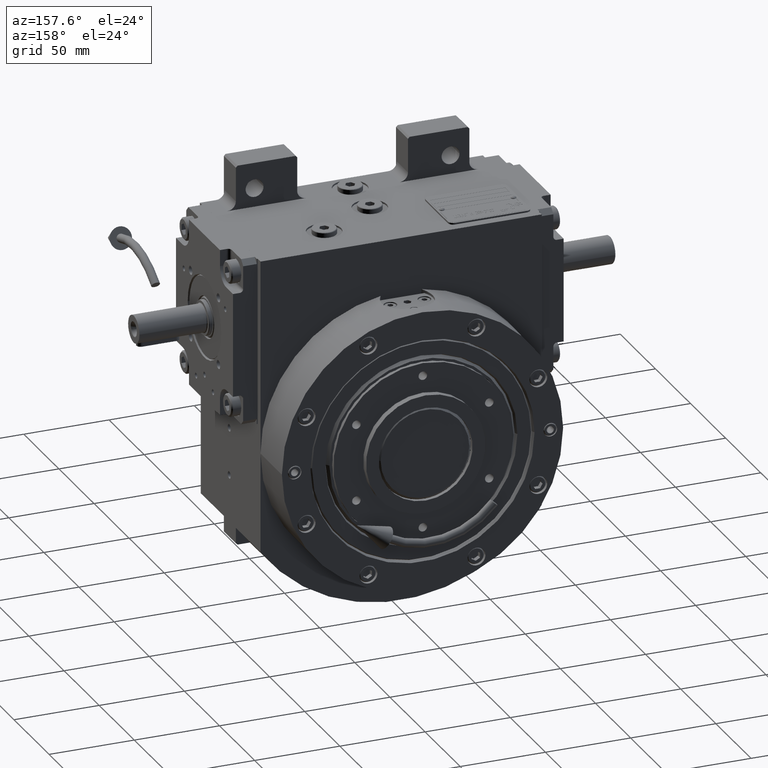
[diagram: clean part render]
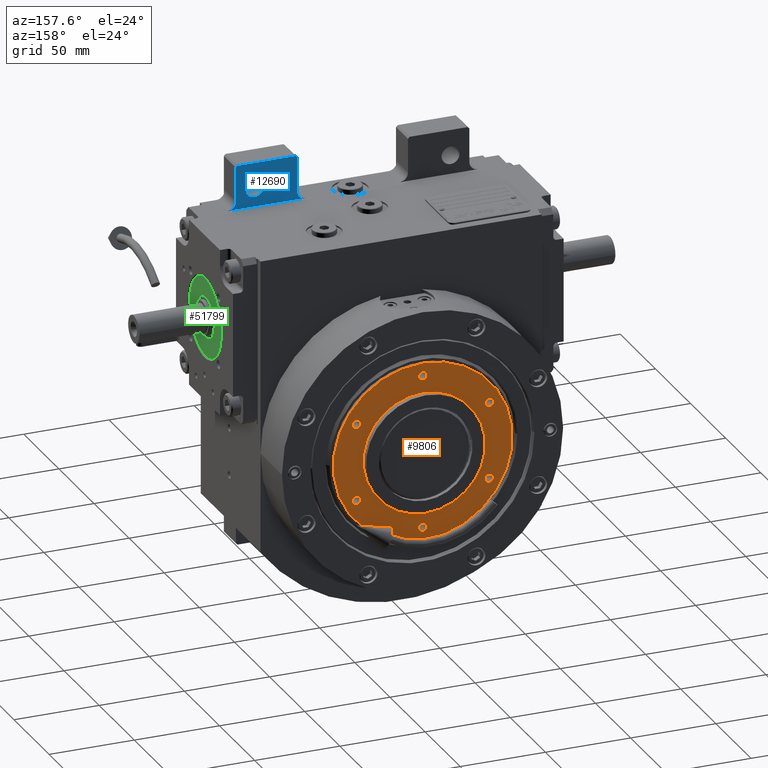
[diagram: same view with three faces highlighted in distinct colors, each labeled with its STEP entity id]
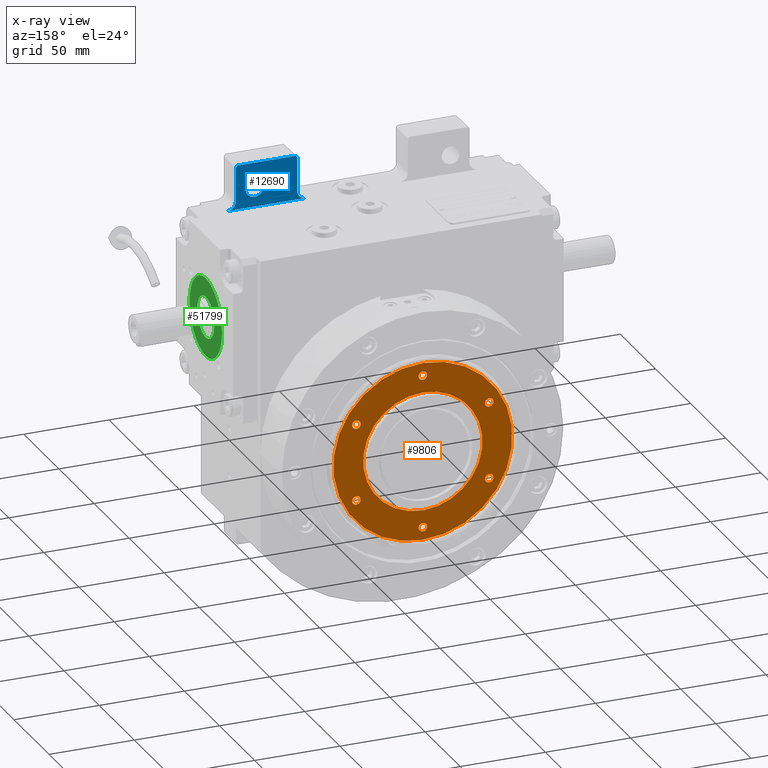
[diagram: x-ray of the same camera — body ghosted, the three highlighted faces saturated]
A machine part, auxiliary view with three faces highlighted in distinct colors.
The next image is the same camera in x-ray (body ghosted, the three faces saturated) — at least one of them is partly hidden behind the body in this view.
Their STEP definitions:

[orange] entity #9806 — the highlighted planar face has unit normal (0, -1, -0).
#448 = CARTESIAN_POINT ( 'NONE',  ( 45.00000000000000000, 89.00000000000000000, 7.494178599599612151E-27 ) ) ;
#850 = DIRECTION ( 'NONE',  ( -1.000000000000000000, 0.000000000000000000, 0.000000000000000000 ) ) ;
#1169 = CARTESIAN_POINT ( 'NONE',  ( 22.50000000000000000, 89.00000000000000000, -38.97114317029975439 ) ) ;
#1374 = DIRECTION ( 'NONE',  ( 1.000000000000000000, 0.000000000000000000, 1.224646799147351728E-16 ) ) ;
#1530 = CIRCLE ( 'NONE', #2584, 35.00000000000000000 ) ;
#1549 = DIRECTION ( 'NONE',  ( 0.000000000000000000, 1.000000000000000000, -1.685188701288034302E-33 ) ) ;
#1693 = CARTESIAN_POINT ( 'NONE',  ( 2.486899575160352859E-14, 89.00000000000000000, 7.494178599599612151E-27 ) ) ;
#1794 = FACE_BOUND ( 'NONE', #33857, .T. ) ;
#2186 = VERTEX_POINT ( 'NONE', #7783 ) ;
#2262 = ORIENTED_EDGE ( 'NONE', *, *, #23890, .F. ) ;
#2481 = EDGE_CURVE ( 'NONE', #34522, #28429, #20220, .T. ) ;
#2584 = AXIS2_PLACEMENT_3D ( 'NONE', #1693, #60845, #1374 ) ;
#2705 = CARTESIAN_POINT ( 'NONE',  ( -45.00000000000000000, 89.00000000000000000, 4.440892098500137068E-16 ) ) ;
#3020 = DIRECTION ( 'NONE',  ( 1.000000000000000000, 0.000000000000000000, -1.776356839400242675E-16 ) ) ;
#3034 = EDGE_CURVE ( 'NONE', #46378, #5541, #13054, .T. ) ;
#3482 = EDGE_LOOP ( 'NONE', ( #20388, #48358 ) ) ;
#3843 = AXIS2_PLACEMENT_3D ( 'NONE', #49828, #55338, #6183 ) ;
#4149 = EDGE_LOOP ( 'NONE', ( #36306, #35756 ) ) ;
#4400 = AXIS2_PLACEMENT_3D ( 'NONE', #14996, #5958, #25033 ) ;
#4436 = ORIENTED_EDGE ( 'NONE', *, *, #37400, .F. ) ;
#4528 = CARTESIAN_POINT ( 'NONE',  ( -22.50000000000000000, 89.00000000000000000, -38.97114317030001729 ) ) ;
#4697 = ORIENTED_EDGE ( 'NONE', *, *, #3034, .F. ) ;
#4938 = EDGE_CURVE ( 'NONE', #14211, #62843, #31004, .T. ) ;
#5343 = DIRECTION ( 'NONE',  ( 0.000000000000000000, 1.000000000000000000, -1.685188701288034302E-33 ) ) ;
#5541 = VERTEX_POINT ( 'NONE', #8491 ) ;
#5958 = DIRECTION ( 'NONE',  ( 0.000000000000000000, 1.000000000000000000, -1.685188701288034302E-33 ) ) ;
#6116 = DIRECTION ( 'NONE',  ( 1.000000000000000000, -2.643388153869420311E-16, 0.000000000000000000 ) ) ;
#6183 = DIRECTION ( 'NONE',  ( -1.000000000000000000, 0.000000000000000000, 0.000000000000000000 ) ) ;
#6312 = DIRECTION ( 'NONE',  ( 0.000000000000000000, 1.000000000000000000, -1.685188701288034302E-33 ) ) ;
#7454 = AXIS2_PLACEMENT_3D ( 'NONE', #1169, #6312, #850 ) ;
#7697 = EDGE_LOOP ( 'NONE', ( #13325, #4697 ) ) ;
#7783 = CARTESIAN_POINT ( 'NONE',  ( -25.00000000000000000, 89.00000000000000000, -38.97114317030001729 ) ) ;
#8388 = VERTEX_POINT ( 'NONE', #13407 ) ;
#8474 = EDGE_LOOP ( 'NONE', ( #53972, #28627 ) ) ;
#8491 = CARTESIAN_POINT ( 'NONE',  ( -25.00000000000000000, 89.00000000000000000, 38.97114317029949149 ) ) ;
#9200 = DIRECTION ( 'NONE',  ( -2.706829469562285187E-16, -1.000000000000000000, -6.062552332133027738E-33 ) ) ;
#9224 = CARTESIAN_POINT ( 'NONE',  ( 22.50000000000000000, 89.00000000000000000, 38.97114317029975439 ) ) ;
#9262 = VERTEX_POINT ( 'NONE', #54255 ) ;
#9717 = EDGE_CURVE ( 'NONE', #62843, #14211, #15687, .T. ) ;
#9806 = ADVANCED_FACE ( 'NONE', ( #1794, #55454, #59649, #39926, #20830, #15344, #45096, #15989 ), #49947, .F. ) ;
#9872 = CARTESIAN_POINT ( 'NONE',  ( 2.131628207280341894E-14, 89.00000000000000000, 7.105427357608502348E-15 ) ) ;
#9952 = CARTESIAN_POINT ( 'NONE',  ( 20.00000000000000000, 89.00000000000000000, 38.97114317029975439 ) ) ;
#9974 = DIRECTION ( 'NONE',  ( 0.000000000000000000, 1.000000000000000000, -1.685188701288034302E-33 ) ) ;
#10163 = DIRECTION ( 'NONE',  ( -1.000000000000000000, 1.836909530733564901E-16, 0.000000000000000000 ) ) ;
#10373 = ORIENTED_EDGE ( 'NONE', *, *, #28654, .F. ) ;
#10685 = EDGE_CURVE ( 'NONE', #9262, #32246, #27184, .T. ) ;
#12245 = CIRCLE ( 'NONE', #37064, 35.00000000000000000 ) ;
#13054 = CIRCLE ( 'NONE', #21321, 2.499999999999998668 ) ;
#13325 = ORIENTED_EDGE ( 'NONE', *, *, #35901, .F. ) ;
#13407 = CARTESIAN_POINT ( 'NONE',  ( -42.50000000000000000, 89.00000000000000000, 1.836909530733676328E-15 ) ) ;
#14211 = VERTEX_POINT ( 'NONE', #22791 ) ;
#14683 = AXIS2_PLACEMENT_3D ( 'NONE', #29614, #5343, #50919 ) ;
#14996 = CARTESIAN_POINT ( 'NONE',  ( 22.50000000000000000, 89.00000000000000000, -38.97114317029975439 ) ) ;
#15316 = CARTESIAN_POINT ( 'NONE',  ( 25.00000000000000000, 89.00000000000000000, -38.97114317029975439 ) ) ;
#15344 = FACE_BOUND ( 'NONE', #8474, .T. ) ;
#15465 = DIRECTION ( 'NONE',  ( 2.706829469562285187E-16, 1.000000000000000000, 6.062552332133027738E-33 ) ) ;
#15687 = CIRCLE ( 'NONE', #21886, 2.499999999999998668 ) ;
#15932 = ORIENTED_EDGE ( 'NONE', *, *, #17859, .F. ) ;
#15989 = FACE_BOUND ( 'NONE', #35622, .T. ) ;
#16160 = ORIENTED_EDGE ( 'NONE', *, *, #2481, .T. ) ;
#16527 = VERTEX_POINT ( 'NONE', #15316 ) ;
#17322 = DIRECTION ( 'NONE',  ( 1.000000000000000000, 0.000000000000000000, 0.000000000000000000 ) ) ;
#17477 = EDGE_CURVE ( 'NONE', #60428, #2186, #59226, .T. ) ;
#17859 = EDGE_CURVE ( 'NONE', #34522, #28429, #22122, .T. ) ;
#18569 = EDGE_CURVE ( 'NONE', #62181, #56754, #1530, .T. ) ;
#18946 = VERTEX_POINT ( 'NONE', #40709 ) ;
#20220 = CIRCLE ( 'NONE', #42933, 52.50000000000000000 ) ;
#20388 = ORIENTED_EDGE ( 'NONE', *, *, #53220, .F. ) ;
#20825 = AXIS2_PLACEMENT_3D ( 'NONE', #50271, #25064, #10163 ) ;
#20830 = FACE_BOUND ( 'NONE', #4149, .T. ) ;
#21321 = AXIS2_PLACEMENT_3D ( 'NONE', #50969, #1549, #31582 ) ;
#21886 = AXIS2_PLACEMENT_3D ( 'NONE', #9224, #53542, #53225 ) ;
#22106 = EDGE_CURVE ( 'NONE', #50379, #16527, #27093, .T. ) ;
#22122 = CIRCLE ( 'NONE', #57205, 52.50000000000000000 ) ;
#22791 = CARTESIAN_POINT ( 'NONE',  ( 25.00000000000000000, 89.00000000000000000, 38.97114317029975439 ) ) ;
#23890 = EDGE_CURVE ( 'NONE', #8388, #18946, #55150, .T. ) ;
#24768 = DIRECTION ( 'NONE',  ( 0.000000000000000000, 1.000000000000000000, -1.685188701288034302E-33 ) ) ;
#24948 = CARTESIAN_POINT ( 'NONE',  ( -35.00000000000000000, 89.00000000000000000, -5.715018396020886806E-15 ) ) ;
#25033 = DIRECTION ( 'NONE',  ( 1.000000000000000000, 0.000000000000000000, 0.000000000000000000 ) ) ;
#25064 = DIRECTION ( 'NONE',  ( -1.836909530733564901E-16, -1.000000000000000000, -5.954631203350559886E-33 ) ) ;
#25546 = CARTESIAN_POINT ( 'NONE',  ( 20.00000000000000000, 89.00000000000000000, -38.97114317029975439 ) ) ;
#26302 = DIRECTION ( 'NONE',  ( 0.000000000000000000, 1.000000000000000000, -1.685188701288034302E-33 ) ) ;
#27093 = CIRCLE ( 'NONE', #7454, 2.499999999999998668 ) ;
#27184 = CIRCLE ( 'NONE', #35429, 2.500000000000002220 ) ;
#27265 = DIRECTION ( 'NONE',  ( 0.000000000000000000, 1.000000000000000000, -1.685188701288034302E-33 ) ) ;
#28429 = VERTEX_POINT ( 'NONE', #34108 ) ;
#28548 = ORIENTED_EDGE ( 'NONE', *, *, #18569, .T. ) ;
#28627 = ORIENTED_EDGE ( 'NONE', *, *, #10685, .F. ) ;
#28654 = EDGE_CURVE ( 'NONE', #16527, #50379, #62195, .T. ) ;
#29368 = CARTESIAN_POINT ( 'NONE',  ( 42.50000000000000000, 89.00000000000000000, -2.680204416053838929E-16 ) ) ;
#29614 = CARTESIAN_POINT ( 'NONE',  ( -22.50000000000000000, 89.00000000000000000, -38.97114317030001729 ) ) ;
#29726 = DIRECTION ( 'NONE',  ( 1.000000000000000000, 0.000000000000000000, 0.000000000000000000 ) ) ;
#31004 = CIRCLE ( 'NONE', #47502, 2.499999999999998668 ) ;
#31582 = DIRECTION ( 'NONE',  ( 1.000000000000000000, 0.000000000000000000, 0.000000000000000000 ) ) ;
#32246 = VERTEX_POINT ( 'NONE', #29368 ) ;
#33146 = DIRECTION ( 'NONE',  ( 1.000000000000000000, -2.643388153869420311E-16, 0.000000000000000000 ) ) ;
#33329 = ORIENTED_EDGE ( 'NONE', *, *, #62463, .F. ) ;
#33857 = EDGE_LOOP ( 'NONE', ( #58658, #10373 ) ) ;
#34108 = CARTESIAN_POINT ( 'NONE',  ( -52.50000000000000000, 89.00000000000000000, -4.286263797015911623E-15 ) ) ;
#34159 = CARTESIAN_POINT ( 'NONE',  ( 35.00000000000000000, 89.00000000000000000, 4.286263797015911623E-15 ) ) ;
#34522 = VERTEX_POINT ( 'NONE', #60577 ) ;
#35429 = AXIS2_PLACEMENT_3D ( 'NONE', #60046, #50363, #55848 ) ;
#35622 = EDGE_LOOP ( 'NONE', ( #33329, #28548 ) ) ;
#35756 = ORIENTED_EDGE ( 'NONE', *, *, #4938, .F. ) ;
#35901 = EDGE_CURVE ( 'NONE', #5541, #46378, #44943, .T. ) ;
#36306 = ORIENTED_EDGE ( 'NONE', *, *, #9717, .F. ) ;
#36308 = DIRECTION ( 'NONE',  ( 0.000000000000000000, 1.000000000000000000, -1.685188701288034302E-33 ) ) ;
#36876 = CIRCLE ( 'NONE', #3843, 2.500000000000002220 ) ;
#37064 = AXIS2_PLACEMENT_3D ( 'NONE', #9872, #24768, #49327 ) ;
#37400 = EDGE_CURVE ( 'NONE', #18946, #8388, #36876, .T. ) ;
#39872 = DIRECTION ( 'NONE',  ( -1.000000000000000000, 0.000000000000000000, 0.000000000000000000 ) ) ;
#39926 = FACE_BOUND ( 'NONE', #7697, .T. ) ;
#40709 = CARTESIAN_POINT ( 'NONE',  ( -47.50000000000000000, 89.00000000000000000, 1.568889089120798256E-15 ) ) ;
#41165 = CARTESIAN_POINT ( 'NONE',  ( -22.50000000000000000, 89.00000000000000000, 38.97114317029949149 ) ) ;
#42581 = CIRCLE ( 'NONE', #14683, 2.499999999999998668 ) ;
#42933 = AXIS2_PLACEMENT_3D ( 'NONE', #60093, #15465, #6116 ) ;
#43993 = EDGE_CURVE ( 'NONE', #32246, #9262, #53893, .T. ) ;
#44943 = CIRCLE ( 'NONE', #57375, 2.499999999999998668 ) ;
#45096 = FACE_OUTER_BOUND ( 'NONE', #62448, .T. ) ;
#46378 = VERTEX_POINT ( 'NONE', #56117 ) ;
#47502 = AXIS2_PLACEMENT_3D ( 'NONE', #57723, #61969, #17322 ) ;
#48358 = ORIENTED_EDGE ( 'NONE', *, *, #17477, .F. ) ;
#49327 = DIRECTION ( 'NONE',  ( 1.000000000000000000, 0.000000000000000000, -8.054753030243562461E-17 ) ) ;
#49828 = CARTESIAN_POINT ( 'NONE',  ( -45.00000000000000000, 89.00000000000000000, -1.972152263052529514E-28 ) ) ;
#49900 = AXIS2_PLACEMENT_3D ( 'NONE', #4528, #9974, #29726 ) ;
#49947 = PLANE ( 'NONE',  #20825 ) ;
#50271 = CARTESIAN_POINT ( 'NONE',  ( 1.635767019581042183E-14, 89.00000000000000000, 7.494178599599612151E-27 ) ) ;
#50363 = DIRECTION ( 'NONE',  ( 0.000000000000000000, 1.000000000000000000, -1.685188701288034302E-33 ) ) ;
#50379 = VERTEX_POINT ( 'NONE', #25546 ) ;
#50919 = DIRECTION ( 'NONE',  ( -1.000000000000000000, 0.000000000000000000, 0.000000000000000000 ) ) ;
#50969 = CARTESIAN_POINT ( 'NONE',  ( -22.50000000000000000, 89.00000000000000000, 38.97114317029949149 ) ) ;
#53220 = EDGE_CURVE ( 'NONE', #2186, #60428, #42581, .T. ) ;
#53225 = DIRECTION ( 'NONE',  ( -1.000000000000000000, 0.000000000000000000, 0.000000000000000000 ) ) ;
#53519 = CARTESIAN_POINT ( 'NONE',  ( 1.776356839400252042E-14, 89.00000000000000000, 7.494178599599612151E-27 ) ) ;
#53542 = DIRECTION ( 'NONE',  ( 0.000000000000000000, 1.000000000000000000, -1.685188701288034302E-33 ) ) ;
#53893 = CIRCLE ( 'NONE', #61101, 2.500000000000002220 ) ;
#53972 = ORIENTED_EDGE ( 'NONE', *, *, #43993, .F. ) ;
#54255 = CARTESIAN_POINT ( 'NONE',  ( 47.50000000000000000, 89.00000000000000000, 7.494178599599612151E-27 ) ) ;
#55150 = CIRCLE ( 'NONE', #58232, 2.500000000000002220 ) ;
#55338 = DIRECTION ( 'NONE',  ( 0.000000000000000000, 1.000000000000000000, -1.685188701288034302E-33 ) ) ;
#55454 = FACE_BOUND ( 'NONE', #3482, .T. ) ;
#55848 = DIRECTION ( 'NONE',  ( 1.000000000000000000, 0.000000000000000000, 0.000000000000000000 ) ) ;
#56030 = DIRECTION ( 'NONE',  ( -1.000000000000000000, 0.000000000000000000, 0.000000000000000000 ) ) ;
#56117 = CARTESIAN_POINT ( 'NONE',  ( -20.00000000000000000, 89.00000000000000000, 38.97114317029949149 ) ) ;
#56754 = VERTEX_POINT ( 'NONE', #24948 ) ;
#57205 = AXIS2_PLACEMENT_3D ( 'NONE', #53519, #9200, #33146 ) ;
#57375 = AXIS2_PLACEMENT_3D ( 'NONE', #41165, #36308, #56030 ) ;
#57723 = CARTESIAN_POINT ( 'NONE',  ( 22.50000000000000000, 89.00000000000000000, 38.97114317029975439 ) ) ;
#57891 = EDGE_LOOP ( 'NONE', ( #4436, #2262 ) ) ;
#58232 = AXIS2_PLACEMENT_3D ( 'NONE', #2705, #27265, #3020 ) ;
#58658 = ORIENTED_EDGE ( 'NONE', *, *, #22106, .F. ) ;
#59226 = CIRCLE ( 'NONE', #49900, 2.499999999999998668 ) ;
#59649 = FACE_BOUND ( 'NONE', #57891, .T. ) ;
#60046 = CARTESIAN_POINT ( 'NONE',  ( 45.00000000000000000, 89.00000000000000000, 7.494178599599612151E-27 ) ) ;
#60093 = CARTESIAN_POINT ( 'NONE',  ( 1.776356839400252042E-14, 89.00000000000000000, 7.494178599599612151E-27 ) ) ;
#60428 = VERTEX_POINT ( 'NONE', #63006 ) ;
#60577 = CARTESIAN_POINT ( 'NONE',  ( 52.50000000000000000, 89.00000000000000000, 2.143131898515351383E-15 ) ) ;
#60845 = DIRECTION ( 'NONE',  ( 0.000000000000000000, -1.000000000000000000, 1.685188701288034302E-33 ) ) ;
#61101 = AXIS2_PLACEMENT_3D ( 'NONE', #448, #26302, #39872 ) ;
#61969 = DIRECTION ( 'NONE',  ( 0.000000000000000000, 1.000000000000000000, -1.685188701288034302E-33 ) ) ;
#62181 = VERTEX_POINT ( 'NONE', #34159 ) ;
#62195 = CIRCLE ( 'NONE', #4400, 2.499999999999998668 ) ;
#62448 = EDGE_LOOP ( 'NONE', ( #15932, #16160 ) ) ;
#62463 = EDGE_CURVE ( 'NONE', #62181, #56754, #12245, .T. ) ;
#62843 = VERTEX_POINT ( 'NONE', #9952 ) ;
#63006 = CARTESIAN_POINT ( 'NONE',  ( -20.00000000000000000, 89.00000000000000000, -38.97114317030001729 ) ) ;

[blue] entity #12690 — the highlighted planar face has unit normal (0, -1, 0).
#188 = LINE ( 'NONE', #10480, #63233 ) ;
#1052 = VERTEX_POINT ( 'NONE', #40126 ) ;
#1949 = VERTEX_POINT ( 'NONE', #39824 ) ;
#4744 = CARTESIAN_POINT ( 'NONE',  ( 32.49999999999934630, -24.50000000000000000, 119.0000000000000000 ) ) ;
#5202 = VECTOR ( 'NONE', #42002, 1000.000000000000114 ) ;
#5757 = VECTOR ( 'NONE', #61459, 1000.000000000000000 ) ;
#5833 = DIRECTION ( 'NONE',  ( 0.000000000000000000, -1.000000000000000000, 0.000000000000000000 ) ) ;
#6667 = VERTEX_POINT ( 'NONE', #16603 ) ;
#7391 = CARTESIAN_POINT ( 'NONE',  ( 67.50000000000000000, -24.50000000000000000, 140.0000000000000000 ) ) ;
#7940 = CIRCLE ( 'NONE', #37891, 5.249999999999997335 ) ;
#7994 = DIRECTION ( 'NONE',  ( -1.000000000000000000, 0.000000000000000000, 5.286776307738843186E-15 ) ) ;
#8520 = AXIS2_PLACEMENT_3D ( 'NONE', #24375, #57985, #43118 ) ;
#8723 = VECTOR ( 'NONE', #59554, 1000.000000000000000 ) ;
#9014 = CARTESIAN_POINT ( 'NONE',  ( 57.50000000000000000, -24.50000000000000000, 125.0000000000000000 ) ) ;
#9879 = AXIS2_PLACEMENT_3D ( 'NONE', #9014, #43936, #48140 ) ;
#10480 = CARTESIAN_POINT ( 'NONE',  ( 27.49999999999934630, -24.50000000000000000, 114.0000000000000000 ) ) ;
#12104 = DIRECTION ( 'NONE',  ( 0.000000000000000000, -1.000000000000000000, 0.000000000000000000 ) ) ;
#12690 = ADVANCED_FACE ( 'NONE', ( #42193, #51252 ), #21808, .F. ) ;
#16135 = LINE ( 'NONE', #46196, #27267 ) ;
#16603 = CARTESIAN_POINT ( 'NONE',  ( 68.50000000000000000, -24.50000000000000000, 139.0000000000000000 ) ) ;
#18312 = VECTOR ( 'NONE', #43742, 1000.000000000000000 ) ;
#18391 = EDGE_CURVE ( 'NONE', #37622, #6667, #40455, .T. ) ;
#20222 = ORIENTED_EDGE ( 'NONE', *, *, #59512, .F. ) ;
#20677 = EDGE_CURVE ( 'NONE', #58890, #1949, #188, .T. ) ;
#20932 = ORIENTED_EDGE ( 'NONE', *, *, #30409, .T. ) ;
#21053 = EDGE_CURVE ( 'NONE', #37622, #1949, #36412, .T. ) ;
#21808 = PLANE ( 'NONE',  #61434 ) ;
#22549 = CARTESIAN_POINT ( 'NONE',  ( 32.49999999999934630, -24.50000000000000000, 139.0000000000000000 ) ) ;
#23390 = VERTEX_POINT ( 'NONE', #24226 ) ;
#24226 = CARTESIAN_POINT ( 'NONE',  ( 52.25000000000000000, -24.50000000000000000, 125.0000000000000000 ) ) ;
#24375 = CARTESIAN_POINT ( 'NONE',  ( 73.50000000000000000, -24.50000000000000000, 119.0000000000000000 ) ) ;
#24561 = CIRCLE ( 'NONE', #41079, 5.000000000000004441 ) ;
#25263 = VERTEX_POINT ( 'NONE', #4744 ) ;
#25560 = DIRECTION ( 'NONE',  ( -1.387778780781444492E-15, 0.000000000000000000, -1.000000000000000000 ) ) ;
#25854 = DIRECTION ( 'NONE',  ( 0.7071067811865474617, 0.000000000000000000, 0.7071067811865474617 ) ) ;
#26037 = EDGE_CURVE ( 'NONE', #1052, #29754, #37175, .T. ) ;
#26143 = EDGE_CURVE ( 'NONE', #34401, #23390, #29535, .T. ) ;
#27267 = VECTOR ( 'NONE', #25854, 1000.000000000000114 ) ;
#27479 = LINE ( 'NONE', #7391, #5202 ) ;
#27744 = DIRECTION ( 'NONE',  ( 0.000000000000000000, 1.000000000000000000, 0.000000000000000000 ) ) ;
#29535 = CIRCLE ( 'NONE', #9879, 5.249999999999997335 ) ;
#29754 = VERTEX_POINT ( 'NONE', #58291 ) ;
#30401 = CARTESIAN_POINT ( 'NONE',  ( 27.49999999999934630, -24.50000000000000000, 119.0000000000000000 ) ) ;
#30409 = EDGE_CURVE ( 'NONE', #45098, #29754, #16135, .T. ) ;
#33744 = CARTESIAN_POINT ( 'NONE',  ( 32.49999999999934630, -24.50000000000000000, 139.0000000000000000 ) ) ;
#34401 = VERTEX_POINT ( 'NONE', #46002 ) ;
#35083 = ORIENTED_EDGE ( 'NONE', *, *, #26037, .F. ) ;
#36076 = CARTESIAN_POINT ( 'NONE',  ( 0.000000000000000000, -24.50000000000000000, 0.000000000000000000 ) ) ;
#36412 = CIRCLE ( 'NONE', #8520, 5.000000000000004441 ) ;
#36719 = CARTESIAN_POINT ( 'NONE',  ( 27.49999999999934630, -24.50000000000000000, 114.0000000000000000 ) ) ;
#37158 = ORIENTED_EDGE ( 'NONE', *, *, #18391, .F. ) ;
#37175 = LINE ( 'NONE', #41711, #5757 ) ;
#37433 = ORIENTED_EDGE ( 'NONE', *, *, #45272, .F. ) ;
#37622 = VERTEX_POINT ( 'NONE', #60834 ) ;
#37891 = AXIS2_PLACEMENT_3D ( 'NONE', #52305, #27744, #7994 ) ;
#39824 = CARTESIAN_POINT ( 'NONE',  ( 73.50000000000000000, -24.50000000000000000, 114.0000000000000000 ) ) ;
#39831 = CARTESIAN_POINT ( 'NONE',  ( 68.50000000000000000, -24.50000000000000000, 119.0000000000000000 ) ) ;
#40126 = CARTESIAN_POINT ( 'NONE',  ( 67.50000000000000000, -24.50000000000000000, 140.0000000000000000 ) ) ;
#40455 = LINE ( 'NONE', #39831, #8723 ) ;
#41079 = AXIS2_PLACEMENT_3D ( 'NONE', #30401, #5833, #25560 ) ;
#41711 = CARTESIAN_POINT ( 'NONE',  ( 67.50000000000000000, -24.50000000000000000, 140.0000000000000000 ) ) ;
#42002 = DIRECTION ( 'NONE',  ( 0.7071067811865474617, 0.000000000000000000, -0.7071067811865474617 ) ) ;
#42193 = FACE_BOUND ( 'NONE', #52433, .T. ) ;
#43118 = DIRECTION ( 'NONE',  ( -1.000000000000000000, 0.000000000000000000, 0.000000000000000000 ) ) ;
#43742 = DIRECTION ( 'NONE',  ( 0.000000000000000000, 0.000000000000000000, -1.000000000000000000 ) ) ;
#43936 = DIRECTION ( 'NONE',  ( 0.000000000000000000, 1.000000000000000000, 0.000000000000000000 ) ) ;
#44687 = LINE ( 'NONE', #33744, #18312 ) ;
#45098 = VERTEX_POINT ( 'NONE', #22549 ) ;
#45272 = EDGE_CURVE ( 'NONE', #23390, #34401, #7940, .T. ) ;
#46002 = CARTESIAN_POINT ( 'NONE',  ( 62.75000000000000000, -24.50000000000000000, 125.0000000000000000 ) ) ;
#46196 = CARTESIAN_POINT ( 'NONE',  ( 32.49999999999934630, -24.50000000000000000, 139.0000000000000000 ) ) ;
#47994 = ORIENTED_EDGE ( 'NONE', *, *, #21053, .T. ) ;
#48140 = DIRECTION ( 'NONE',  ( 1.000000000000000000, 0.000000000000000000, 5.286776307738843186E-15 ) ) ;
#50200 = ORIENTED_EDGE ( 'NONE', *, *, #26143, .F. ) ;
#50542 = EDGE_CURVE ( 'NONE', #1052, #6667, #27479, .T. ) ;
#51252 = FACE_OUTER_BOUND ( 'NONE', #59930, .T. ) ;
#52305 = CARTESIAN_POINT ( 'NONE',  ( 57.50000000000000000, -24.50000000000000000, 125.0000000000000000 ) ) ;
#52433 = EDGE_LOOP ( 'NONE', ( #50200, #37433 ) ) ;
#54189 = DIRECTION ( 'NONE',  ( 1.000000000000000000, 0.000000000000000000, 0.000000000000000000 ) ) ;
#55477 = DIRECTION ( 'NONE',  ( -1.000000000000000000, 0.000000000000000000, 0.000000000000000000 ) ) ;
#55891 = ORIENTED_EDGE ( 'NONE', *, *, #20677, .F. ) ;
#57309 = ORIENTED_EDGE ( 'NONE', *, *, #60136, .T. ) ;
#57829 = ORIENTED_EDGE ( 'NONE', *, *, #50542, .T. ) ;
#57985 = DIRECTION ( 'NONE',  ( 0.000000000000000000, -1.000000000000000000, 0.000000000000000000 ) ) ;
#58291 = CARTESIAN_POINT ( 'NONE',  ( 33.49999999999934630, -24.50000000000000000, 140.0000000000000000 ) ) ;
#58890 = VERTEX_POINT ( 'NONE', #36719 ) ;
#59512 = EDGE_CURVE ( 'NONE', #45098, #25263, #44687, .T. ) ;
#59554 = DIRECTION ( 'NONE',  ( 0.000000000000000000, 0.000000000000000000, 1.000000000000000000 ) ) ;
#59930 = EDGE_LOOP ( 'NONE', ( #37158, #47994, #55891, #57309, #20222, #20932, #35083, #57829 ) ) ;
#60136 = EDGE_CURVE ( 'NONE', #58890, #25263, #24561, .T. ) ;
#60834 = CARTESIAN_POINT ( 'NONE',  ( 68.50000000000000000, -24.50000000000000000, 119.0000000000000000 ) ) ;
#61434 = AXIS2_PLACEMENT_3D ( 'NONE', #36076, #12104, #55477 ) ;
#61459 = DIRECTION ( 'NONE',  ( -1.000000000000000000, 0.000000000000000000, 0.000000000000000000 ) ) ;
#63233 = VECTOR ( 'NONE', #54189, 1000.000000000000000 ) ;

[green] entity #51799 — the highlighted planar face has unit normal (-1, 0, -0).
#3108 = ORIENTED_EDGE ( 'NONE', *, *, #59041, .F. ) ;
#7707 = EDGE_LOOP ( 'NONE', ( #3108, #41630 ) ) ;
#7872 = CARTESIAN_POINT ( 'NONE',  ( 23.09585401869739840, 6.999999542324802704, 2.173331782437690894E-08 ) ) ;
#7941 = AXIS2_PLACEMENT_3D ( 'NONE', #30234, #33820, #9221 ) ;
#9221 = DIRECTION ( 'NONE',  ( 1.000000000000000000, 0.000000000000000000, 1.924633060802941795E-15 ) ) ;
#9529 = CARTESIAN_POINT ( 'NONE',  ( -13.52923841247534931, 7.000000000000130562, -23.09585443615133116 ) ) ;
#12375 = CARTESIAN_POINT ( 'NONE',  ( 13.52923793185785861, 6.999999999999880984, 23.09585496186825893 ) ) ;
#12702 = CARTESIAN_POINT ( 'NONE',  ( -23.09585401869729182, 6.999999542325357815, -2.173323981794039651E-08 ) ) ;
#12784 =( BOUNDED_CURVE ( )  B_SPLINE_CURVE ( 3, ( #12702, #16924, #36668, #51532, #12375, #37290, #7872 ),
 .UNSPECIFIED., .F., .F. ) 
 B_SPLINE_CURVE_WITH_KNOTS ( ( 4, 3, 4 ),
 ( 2.632998397732654983, 4.203794753919688709, 5.774591110106721992 ),
 .UNSPECIFIED. ) 
 CURVE ( )  GEOMETRIC_REPRESENTATION_ITEM ( )  RATIONAL_B_SPLINE_CURVE ( ( 1.000000000000000000, 0.8047378471965718205, 0.8047378471965718205, 1.000000000000000000, 0.8047378471965718205, 0.8047378471965718205, 1.000000000000000000 ) ) 
 REPRESENTATION_ITEM ( '' )  );
#14308 = FACE_BOUND ( 'NONE', #7707, .T. ) ;
#14690 = CARTESIAN_POINT ( 'NONE',  ( -23.09585401869729182, 6.999999542325357815, -2.173323981794039651E-08 ) ) ;
#15232 =( BOUNDED_CURVE ( )  B_SPLINE_CURVE ( 3, ( #53854, #9529, #48984, #14690 ),
 .UNSPECIFIED., .F., .F. ) 
 B_SPLINE_CURVE_WITH_KNOTS ( ( 4, 4 ),
 ( 1.062202122874949861, 2.632998440204151525 ),
 .UNSPECIFIED. ) 
 CURVE ( )  GEOMETRIC_REPRESENTATION_ITEM ( )  RATIONAL_B_SPLINE_CURVE ( ( 1.000000000000000000, 0.8047378563554508091, 0.8047378563554508091, 1.000000000000000000 ) ) 
 REPRESENTATION_ITEM ( '' )  );
#16126 = CARTESIAN_POINT ( 'NONE',  ( -2.619432448724978713E-13, 7.000000000000069278, -23.09585494913709880 ) ) ;
#16659 = DIRECTION ( 'NONE',  ( 2.153350692136698736E-17, -1.000000000000000000, -5.115350721226503239E-15 ) ) ;
#16739 = CARTESIAN_POINT ( 'NONE',  ( -2.619432448724978713E-13, 7.000000000000069278, -23.09585494913709880 ) ) ;
#16877 = CARTESIAN_POINT ( 'NONE',  ( 12.04009600442749317, 7.000000000000006217, 5.986840029364933116E-14 ) ) ;
#16924 = CARTESIAN_POINT ( 'NONE',  ( -23.09585573493668065, 7.000000000000073719, 13.52923849051281024 ) ) ;
#18024 = CIRCLE ( 'NONE', #35615, 12.04009600442785732 ) ;
#21101 = VERTEX_POINT ( 'NONE', #23085 ) ;
#21833 = DIRECTION ( 'NONE',  ( 1.000000000000000000, 0.000000000000000000, 2.072169827847571263E-15 ) ) ;
#22694 = CARTESIAN_POINT ( 'NONE',  ( -12.04009600442772232, 7.000000000000006217, 1.125501430241480170E-14 ) ) ;
#22721 = VERTEX_POINT ( 'NONE', #16877 ) ;
#23085 = CARTESIAN_POINT ( 'NONE',  ( -23.09585401869729182, 6.999999542325357815, -2.173323981794039651E-08 ) ) ;
#23450 = CIRCLE ( 'NONE', #7941, 12.04009600442783778 ) ;
#27394 = ORIENTED_EDGE ( 'NONE', *, *, #58306, .T. ) ;
#27658 = EDGE_LOOP ( 'NONE', ( #52393, #58961, #27394 ) ) ;
#29131 = EDGE_CURVE ( 'NONE', #54651, #47205, #59441, .T. ) ;
#30234 = CARTESIAN_POINT ( 'NONE',  ( 0.000000000000000000, 7.000000000000006217, 3.669563346828540415E-14 ) ) ;
#33820 = DIRECTION ( 'NONE',  ( -2.153350692136698736E-17, 1.000000000000000000, 5.115350721226503239E-15 ) ) ;
#34057 = PLANE ( 'NONE',  #38376 ) ;
#35004 = DIRECTION ( 'NONE',  ( -1.000000000000000000, 2.052305267934827011E-16, -1.998401444325258896E-15 ) ) ;
#35206 = CARTESIAN_POINT ( 'NONE',  ( 23.09585401869739840, 6.999999542324802704, 2.173331782437690894E-08 ) ) ;
#35615 = AXIS2_PLACEMENT_3D ( 'NONE', #38228, #16659, #21833 ) ;
#36668 = CARTESIAN_POINT ( 'NONE',  ( -13.52923972676702213, 7.000000000000004441, 23.09585493640610210 ) ) ;
#37290 = CARTESIAN_POINT ( 'NONE',  ( 23.09585468350323723, 6.999999999999864109, 13.52923853397943077 ) ) ;
#38228 = CARTESIAN_POINT ( 'NONE',  ( 0.000000000000000000, 7.000000000000006217, 3.491927662888514737E-14 ) ) ;
#38376 = AXIS2_PLACEMENT_3D ( 'NONE', #53780, #50510, #35004 ) ;
#39679 = EDGE_CURVE ( 'NONE', #47205, #21101, #15232, .T. ) ;
#40910 = CARTESIAN_POINT ( 'NONE',  ( 23.09585401869739840, 6.999999542324802704, 2.173331782437690894E-08 ) ) ;
#41630 = ORIENTED_EDGE ( 'NONE', *, *, #56610, .T. ) ;
#42783 = VERTEX_POINT ( 'NONE', #22694 ) ;
#45233 = CARTESIAN_POINT ( 'NONE',  ( 13.52923924614951012, 7.000000000000008882, -23.09585546212291263 ) ) ;
#47205 = VERTEX_POINT ( 'NONE', #16739 ) ;
#48984 = CARTESIAN_POINT ( 'NONE',  ( -23.09585468350323012, 7.000000000000148326, -13.52923811714202884 ) ) ;
#50510 = DIRECTION ( 'NONE',  ( -2.052305267934724706E-16, -1.000000000000000000, -5.115350721226505605E-15 ) ) ;
#51532 = CARTESIAN_POINT ( 'NONE',  ( -8.974545794016020039E-07, 6.999999999999943157, 23.09585494913718051 ) ) ;
#51799 = ADVANCED_FACE ( 'NONE', ( #58634, #14308 ), #34057, .F. ) ;
#52393 = ORIENTED_EDGE ( 'NONE', *, *, #29131, .T. ) ;
#53780 = CARTESIAN_POINT ( 'NONE',  ( 0.000000000000000000, 7.000000000000006217, 3.580745504858527891E-14 ) ) ;
#53854 = CARTESIAN_POINT ( 'NONE',  ( -2.619432448724978713E-13, 7.000000000000069278, -23.09585494913709880 ) ) ;
#54630 = CARTESIAN_POINT ( 'NONE',  ( 23.09585573493666999, 6.999999999999936939, -13.52923890735006651 ) ) ;
#54651 = VERTEX_POINT ( 'NONE', #40910 ) ;
#56610 = EDGE_CURVE ( 'NONE', #22721, #42783, #18024, .T. ) ;
#58306 = EDGE_CURVE ( 'NONE', #21101, #54651, #12784, .T. ) ;
#58634 = FACE_OUTER_BOUND ( 'NONE', #27658, .T. ) ;
#58961 = ORIENTED_EDGE ( 'NONE', *, *, #39679, .T. ) ;
#59041 = EDGE_CURVE ( 'NONE', #22721, #42783, #23450, .T. ) ;
#59441 =( BOUNDED_CURVE ( )  B_SPLINE_CURVE ( 3, ( #35206, #54630, #45233, #16126 ),
 .UNSPECIFIED., .F., .F. ) 
 B_SPLINE_CURVE_WITH_KNOTS ( ( 4, 4 ),
 ( 5.774591035009672524, 7.345387430054536537 ),
 .UNSPECIFIED. ) 
 CURVE ( )  GEOMETRIC_REPRESENTATION_ITEM ( )  RATIONAL_B_SPLINE_CURVE ( ( 1.000000000000000000, 0.8047378380376930540, 0.8047378380376930540, 1.000000000000000000 ) ) 
 REPRESENTATION_ITEM ( '' )  );